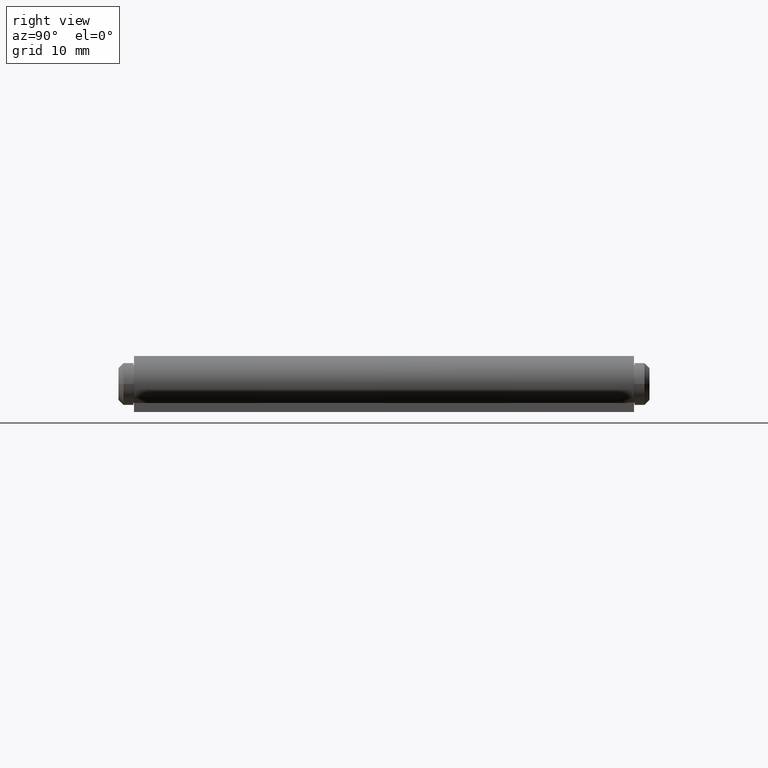
[diagram: clean part render]
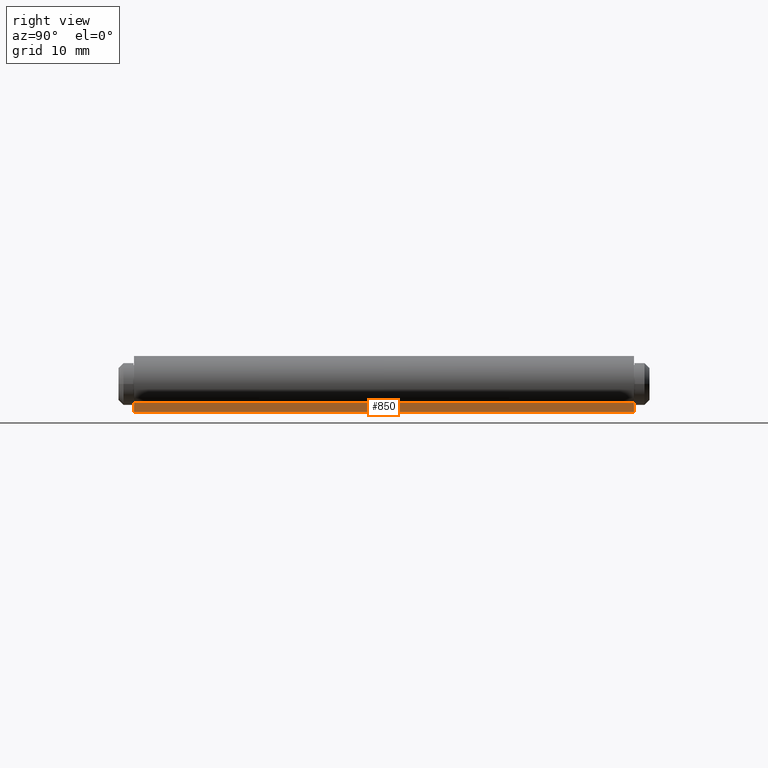
[diagram: same view with one face highlighted and labeled with its STEP entity id]
A machine part, right view. The second image highlights one B-rep face of the part: STEP entity #850.
In plain terms, the highlighted planar face has unit normal (-1, 0, 0).
Its self-contained STEP definition (entity closure, byte-faithful):
#495 = LINE ( 'NONE', #9007, #7043 ) ;
#553 = DIRECTION ( 'NONE',  ( 1.000000000000000000, -0.000000000000000000, 0.000000000000000000 ) ) ;
#606 = DIRECTION ( 'NONE',  ( -0.000000000000000000, -0.000000000000000000, 1.000000000000000000 ) ) ;
#850 = ADVANCED_FACE ( 'NONE', ( #1932 ), #10126, .F. ) ;
#1412 = CARTESIAN_POINT ( 'NONE',  ( -27.79999999999999716, 25.00000000000000000, 0.9000000000000029088 ) ) ;
#1921 = EDGE_CURVE ( 'NONE', #2914, #9768, #3736, .T. ) ;
#1932 = FACE_OUTER_BOUND ( 'NONE', #3982, .T. ) ;
#2293 = CARTESIAN_POINT ( 'NONE',  ( -27.79999999999999716, -25.00000000000000000, 0.9000000000000029088 ) ) ;
#2703 = VERTEX_POINT ( 'NONE', #2293 ) ;
#2740 = LINE ( 'NONE', #1412, #10159 ) ;
#2914 = VERTEX_POINT ( 'NONE', #10602 ) ;
#3034 = CARTESIAN_POINT ( 'NONE',  ( -27.79999999999999716, -25.00000000000000000, 3.144186300207962859E-15 ) ) ;
#3068 = DIRECTION ( 'NONE',  ( 0.000000000000000000, 0.000000000000000000, -1.000000000000000000 ) ) ;
#3724 = CARTESIAN_POINT ( 'NONE',  ( -27.79999999999999716, 25.00000000000000000, 3.144186300207962859E-15 ) ) ;
#3736 = LINE ( 'NONE', #3724, #7774 ) ;
#3795 = LINE ( 'NONE', #7065, #4448 ) ;
#3982 = EDGE_LOOP ( 'NONE', ( #4224, #6319, #9767, #5107 ) ) ;
#4224 = ORIENTED_EDGE ( 'NONE', *, *, #6606, .T. ) ;
#4448 = VECTOR ( 'NONE', #7140, 1000.000000000000000 ) ;
#4730 = DIRECTION ( 'NONE',  ( -0.000000000000000000, -0.000000000000000000, 1.000000000000000000 ) ) ;
#5107 = ORIENTED_EDGE ( 'NONE', *, *, #1921, .T. ) ;
#5139 = AXIS2_PLACEMENT_3D ( 'NONE', #9966, #553, #3068 ) ;
#6319 = ORIENTED_EDGE ( 'NONE', *, *, #8632, .F. ) ;
#6606 = EDGE_CURVE ( 'NONE', #9768, #2703, #495, .T. ) ;
#7043 = VECTOR ( 'NONE', #4730, 1000.000000000000000 ) ;
#7065 = CARTESIAN_POINT ( 'NONE',  ( -27.79999999999999716, 25.00000000000000000, 0.9000000000000029088 ) ) ;
#7140 = DIRECTION ( 'NONE',  ( -0.000000000000000000, -1.000000000000000000, -0.000000000000000000 ) ) ;
#7220 = EDGE_CURVE ( 'NONE', #2914, #8774, #2740, .T. ) ;
#7774 = VECTOR ( 'NONE', #9755, 1000.000000000000000 ) ;
#8632 = EDGE_CURVE ( 'NONE', #8774, #2703, #3795, .T. ) ;
#8774 = VERTEX_POINT ( 'NONE', #10017 ) ;
#9007 = CARTESIAN_POINT ( 'NONE',  ( -27.79999999999999716, -25.00000000000000000, 0.9000000000000029088 ) ) ;
#9755 = DIRECTION ( 'NONE',  ( -0.000000000000000000, -1.000000000000000000, -0.000000000000000000 ) ) ;
#9767 = ORIENTED_EDGE ( 'NONE', *, *, #7220, .F. ) ;
#9768 = VERTEX_POINT ( 'NONE', #3034 ) ;
#9966 = CARTESIAN_POINT ( 'NONE',  ( -27.79999999999999716, 25.00000000000000000, 0.9000000000000029088 ) ) ;
#10017 = CARTESIAN_POINT ( 'NONE',  ( -27.79999999999999716, 25.00000000000000000, 0.9000000000000029088 ) ) ;
#10126 = PLANE ( 'NONE',  #5139 ) ;
#10159 = VECTOR ( 'NONE', #606, 1000.000000000000000 ) ;
#10602 = CARTESIAN_POINT ( 'NONE',  ( -27.79999999999999716, 25.00000000000000000, 3.144186300207962859E-15 ) ) ;